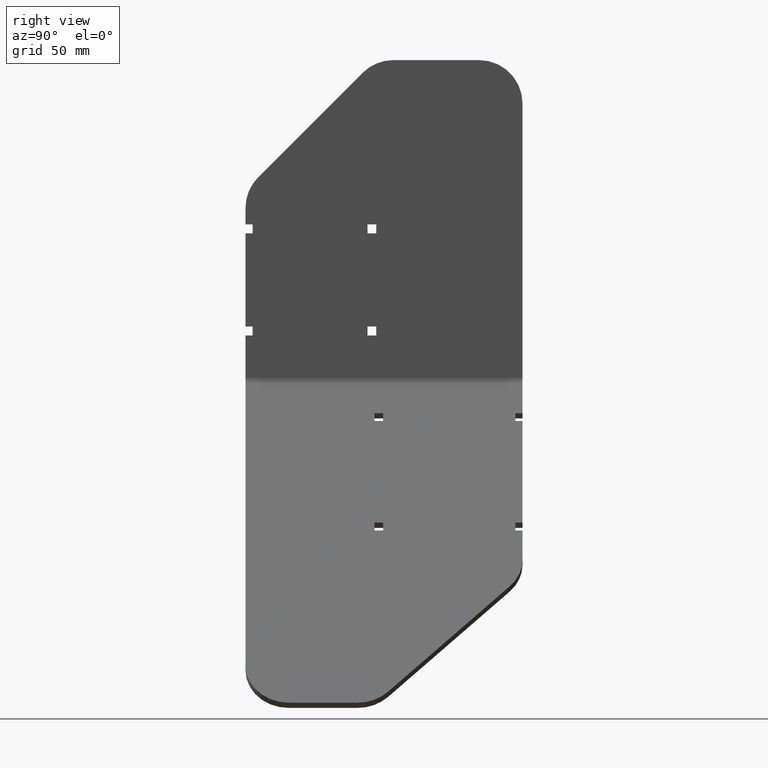
[diagram: clean part render]
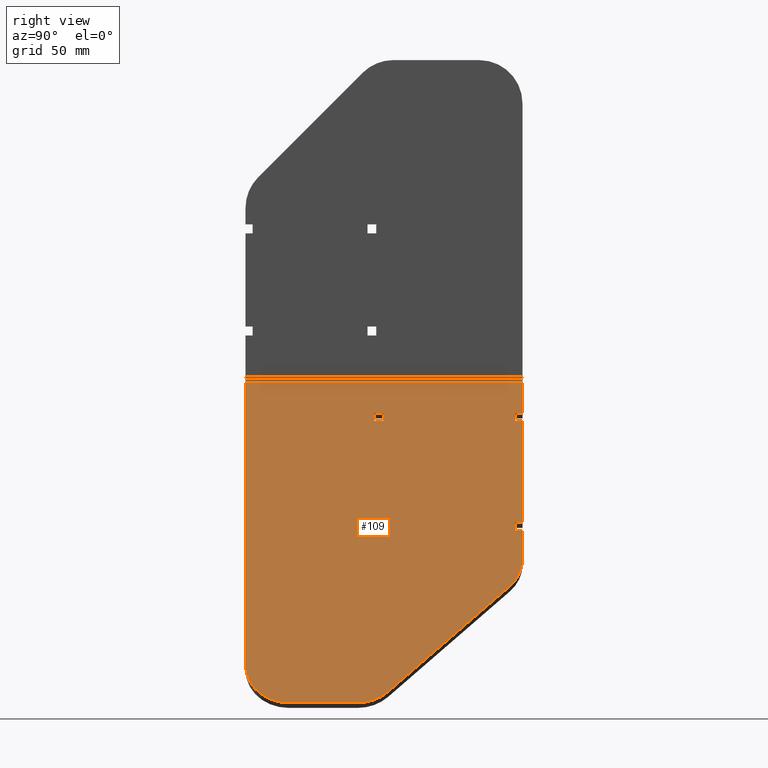
[diagram: same view with one face highlighted and labeled with its STEP entity id]
A machine part, right view. The second image highlights one B-rep face of the part: STEP entity #109.
In plain terms, the highlighted planar face has unit normal (0.866, -0, 0.5).
Its self-contained STEP definition (entity closure, byte-faithful):
#4 = DIRECTION ( 'NONE',  ( 0.3535533905932753962, -0.7071067811865435759, -0.6123724356957981341 ) ) ;
#16 = CARTESIAN_POINT ( 'NONE',  ( -829.5299461620750208, -1174.805262667903662, -930.2627944162877611 ) ) ;
#19 = EDGE_CURVE ( 'NONE', #1085, #1473, #1100, .T. ) ;
#20 = VERTEX_POINT ( 'NONE', #1659 ) ;
#32 = CARTESIAN_POINT ( 'NONE',  ( -829.5299461620750208, -1174.805262667903662, -930.2627944162877611 ) ) ;
#34 = CARTESIAN_POINT ( 'NONE',  ( -986.4499999999997044, -1174.805262667903435, -658.4692884425583088 ) ) ;
#35 = VERTEX_POINT ( 'NONE', #207 ) ;
#47 = CARTESIAN_POINT ( 'NONE',  ( -829.5299461620750208, -1089.305262667903889, -930.2627944162877611 ) ) ;
#65 = ORIENTED_EDGE ( 'NONE', *, *, #1227, .T. ) ;
#66 = AXIS2_PLACEMENT_3D ( 'NONE', #1560, #1555, #1003 ) ;
#67 = LINE ( 'NONE', #255, #1081 ) ;
#71 = LINE ( 'NONE', #639, #1028 ) ;
#96 = LINE ( 'NONE', #1742, #1311 ) ;
#97 = EDGE_CURVE ( 'NONE', #665, #1506, #1298, .T. ) ;
#100 = CARTESIAN_POINT ( 'NONE',  ( -829.5299461620750208, -1249.305262667903662, -930.2627944162877611 ) ) ;
#103 = EDGE_CURVE ( 'NONE', #960, #702, #1434, .T. ) ;
#109 = ADVANCED_FACE ( 'NONE', ( #307, #617, #606 ), #332, .T. ) ;
#112 = CARTESIAN_POINT ( 'NONE',  ( -952.5500000000000682, -1089.305262667903889, -717.1858108191424890 ) ) ;
#120 = ORIENTED_EDGE ( 'NONE', *, *, #428, .T. ) ;
#122 = VERTEX_POINT ( 'NONE', #322 ) ;
#139 = ORIENTED_EDGE ( 'NONE', *, *, #1474, .T. ) ;
#144 = CARTESIAN_POINT ( 'NONE',  ( -904.9999999999996589, -1249.305262667903662, -799.5448267190434990 ) ) ;
#145 = CARTESIAN_POINT ( 'NONE',  ( -829.5299461620750208, -1089.305262667903889, -930.2627944162877611 ) ) ;
#148 = DIRECTION ( 'NONE',  ( 0.4999999999999995559, 0.000000000000000000, -0.8660254037844389297 ) ) ;
#157 = EDGE_CURVE ( 'NONE', #1506, #160, #67, .T. ) ;
#160 = VERTEX_POINT ( 'NONE', #645 ) ;
#164 = DIRECTION ( 'NONE',  ( -0.4999999999999995559, 0.000000000000000000, 0.8660254037844389297 ) ) ;
#171 = DIRECTION ( 'NONE',  ( 0.4999999999999995559, 0.000000000000000000, -0.8660254037844389297 ) ) ;
#173 = LINE ( 'NONE', #1140, #739 ) ;
#174 = CARTESIAN_POINT ( 'NONE',  ( -896.1611652351680277, -1166.982932197567607, -814.8541376114382047 ) ) ;
#180 = DIRECTION ( 'NONE',  ( -0.4999999999999995559, 0.000000000000000000, 0.8660254037844389297 ) ) ;
#183 = ORIENTED_EDGE ( 'NONE', *, *, #1567, .F. ) ;
#203 = CARTESIAN_POINT ( 'NONE',  ( -952.5500000000000682, -1093.405262667904026, -717.1858108191424890 ) ) ;
#207 = CARTESIAN_POINT ( 'NONE',  ( -949.9500000000000455, -1093.405262667904026, -721.6891429188216307 ) ) ;
#223 = VECTOR ( 'NONE', #1375, 1000.000000000000000 ) ;
#224 = VECTOR ( 'NONE', #555, 1000.000000000000000 ) ;
#226 = DIRECTION ( 'NONE',  ( 0.4999999999999987788, 0.000000000000000000, -0.8660254037844393737 ) ) ;
#255 = CARTESIAN_POINT ( 'NONE',  ( -949.9500000000000455, -574.8301822523413875, -721.6891429188217444 ) ) ;
#279 = ORIENTED_EDGE ( 'NONE', *, *, #295, .T. ) ;
#295 = EDGE_CURVE ( 'NONE', #929, #1244, #96, .T. ) ;
#307 = FACE_OUTER_BOUND ( 'NONE', #336, .T. ) ;
#309 = LINE ( 'NONE', #580, #1769 ) ;
#322 = CARTESIAN_POINT ( 'NONE',  ( -952.5500000000000682, -1174.805262667903662, -717.1858108191426027 ) ) ;
#331 = AXIS2_PLACEMENT_3D ( 'NONE', #1235, #405, #688 ) ;
#332 = PLANE ( 'NONE',  #66 ) ;
#336 = EDGE_LOOP ( 'NONE', ( #487, #375, #896, #1224, #806, #139, #65, #1542, #1091, #411, #902, #1029, #183, #1496, #749, #1121 ) ) ;
#347 = CARTESIAN_POINT ( 'NONE',  ( -986.4499999999999318, -1089.305262667903889, -658.4692884425578541 ) ) ;
#352 = EDGE_CURVE ( 'NONE', #1466, #702, #1760, .T. ) ;
#375 = ORIENTED_EDGE ( 'NONE', *, *, #1757, .F. ) ;
#377 = EDGE_CURVE ( 'NONE', #490, #705, #1770, .T. ) ;
#398 = ORIENTED_EDGE ( 'NONE', *, *, #1105, .T. ) ;
#405 = DIRECTION ( 'NONE',  ( 0.8660254037844389297, -0.000000000000000000, 0.4999999999999995559 ) ) ;
#406 = VERTEX_POINT ( 'NONE', #1098 ) ;
#411 = ORIENTED_EDGE ( 'NONE', *, *, #377, .F. ) ;
#428 = EDGE_CURVE ( 'NONE', #1046, #922, #1647, .T. ) ;
#435 = ORIENTED_EDGE ( 'NONE', *, *, #1651, .T. ) ;
#451 = VERTEX_POINT ( 'NONE', #1507 ) ;
#452 = VECTOR ( 'NONE', #544, 1000.000000000000000 ) ;
#472 = CARTESIAN_POINT ( 'NONE',  ( -989.0499999999997272, -1174.805262667903662, -653.9659563428791671 ) ) ;
#479 = EDGE_CURVE ( 'NONE', #490, #451, #1512, .T. ) ;
#480 = VECTOR ( 'NONE', #180, 1000.000000000000000 ) ;
#484 = LINE ( 'NONE', #100, #712 ) ;
#487 = ORIENTED_EDGE ( 'NONE', *, *, #352, .F. ) ;
#490 = VERTEX_POINT ( 'NONE', #715 ) ;
#505 = CARTESIAN_POINT ( 'NONE',  ( -986.4499999999997044, -1169.805262667903889, -658.4692884425583088 ) ) ;
#518 = LINE ( 'NONE', #1610, #853 ) ;
#544 = DIRECTION ( 'NONE',  ( 0.4999999999999995559, 0.000000000000000000, -0.8660254037844389297 ) ) ;
#551 = DIRECTION ( 'NONE',  ( 0.000000000000000000, -1.000000000000000000, 0.000000000000000000 ) ) ;
#555 = DIRECTION ( 'NONE',  ( 0.000000000000000000, -1.000000000000000000, 0.000000000000000000 ) ) ;
#568 = DIRECTION ( 'NONE',  ( -0.4999999999999995559, 0.000000000000000000, 0.8660254037844389297 ) ) ;
#580 = CARTESIAN_POINT ( 'NONE',  ( -999.1961524227064046, -1249.305262667903662, -636.3923048454130367 ) ) ;
#585 = DIRECTION ( 'NONE',  ( -0.4999999999999995559, 0.000000000000000000, 0.8660254037844389297 ) ) ;
#587 = LINE ( 'NONE', #32, #480 ) ;
#596 = VECTOR ( 'NONE', #858, 1000.000000000000000 ) ;
#604 = LINE ( 'NONE', #1440, #1734 ) ;
#606 = FACE_BOUND ( 'NONE', #912, .T. ) ;
#617 = FACE_BOUND ( 'NONE', #1503, .T. ) ;
#624 = VECTOR ( 'NONE', #4, 1000.000000000000000 ) ;
#636 = DIRECTION ( 'NONE',  ( 0.000000000000000000, -1.000000000000000000, 0.000000000000000000 ) ) ;
#637 = EDGE_CURVE ( 'NONE', #1489, #406, #518, .T. ) ;
#639 = CARTESIAN_POINT ( 'NONE',  ( -952.5500000000000682, -574.8301822523413875, -717.1858108191426027 ) ) ;
#645 = CARTESIAN_POINT ( 'NONE',  ( -949.9500000000000455, -1174.805262667903435, -721.6891429188217444 ) ) ;
#652 = VECTOR ( 'NONE', #585, 1000.000000000000000 ) ;
#665 = VERTEX_POINT ( 'NONE', #1700 ) ;
#684 = DIRECTION ( 'NONE',  ( 0.000000000000000000, 1.000000000000000000, 0.000000000000000000 ) ) ;
#688 = DIRECTION ( 'NONE',  ( 0.4999999999999987788, 0.000000000000000000, -0.8660254037844393737 ) ) ;
#692 = CARTESIAN_POINT ( 'NONE',  ( -949.9500000000000455, -574.8301822523413875, -721.6891429188216307 ) ) ;
#702 = VERTEX_POINT ( 'NONE', #347 ) ;
#705 = VERTEX_POINT ( 'NONE', #174 ) ;
#708 = ORIENTED_EDGE ( 'NONE', *, *, #97, .T. ) ;
#712 = VECTOR ( 'NONE', #774, 999.9999999999998863 ) ;
#715 = CARTESIAN_POINT ( 'NONE',  ( -931.3388347648321997, -1096.627593138239945, -753.9246266941921704 ) ) ;
#733 = VECTOR ( 'NONE', #551, 1000.000000000000000 ) ;
#739 = VECTOR ( 'NONE', #1012, 1000.000000000000000 ) ;
#748 = CARTESIAN_POINT ( 'NONE',  ( -940.1776695296639446, -1114.305262667903662, -738.6153158017973510 ) ) ;
#749 = ORIENTED_EDGE ( 'NONE', *, *, #1746, .F. ) ;
#764 = DIRECTION ( 'NONE',  ( 0.8660254037844389297, -0.000000000000000000, 0.4999999999999995559 ) ) ;
#774 = DIRECTION ( 'NONE',  ( 0.4999999999999995004, -0.000000000000000000, -0.8660254037844390407 ) ) ;
#796 = LINE ( 'NONE', #1252, #1402 ) ;
#806 = ORIENTED_EDGE ( 'NONE', *, *, #1360, .T. ) ;
#812 = VERTEX_POINT ( 'NONE', #203 ) ;
#824 = CIRCLE ( 'NONE', #331, 24.99999999999997158 ) ;
#825 = CARTESIAN_POINT ( 'NONE',  ( -949.9500000000000455, -1169.805262667903889, -721.6891429188217444 ) ) ;
#853 = VECTOR ( 'NONE', #1469, 1000.000000000000000 ) ;
#858 = DIRECTION ( 'NONE',  ( -0.4999999999999995559, 0.000000000000000000, 0.8660254037844389297 ) ) ;
#862 = EDGE_CURVE ( 'NONE', #451, #1162, #891, .T. ) ;
#869 = DIRECTION ( 'NONE',  ( 0.000000000000000000, -1.000000000000000000, 0.000000000000000000 ) ) ;
#891 = LINE ( 'NONE', #1691, #596 ) ;
#896 = ORIENTED_EDGE ( 'NONE', *, *, #1251, .F. ) ;
#902 = ORIENTED_EDGE ( 'NONE', *, *, #479, .T. ) ;
#910 = AXIS2_PLACEMENT_3D ( 'NONE', #748, #1027, #226 ) ;
#912 = EDGE_LOOP ( 'NONE', ( #1020, #708, #1215, #1743 ) ) ;
#922 = VERTEX_POINT ( 'NONE', #34 ) ;
#926 = LINE ( 'NONE', #1475, #452 ) ;
#929 = VERTEX_POINT ( 'NONE', #472 ) ;
#932 = EDGE_CURVE ( 'NONE', #812, #35, #604, .T. ) ;
#947 = VECTOR ( 'NONE', #164, 1000.000000000000000 ) ;
#960 = VERTEX_POINT ( 'NONE', #112 ) ;
#963 = LINE ( 'NONE', #1103, #224 ) ;
#994 = EDGE_CURVE ( 'NONE', #1489, #705, #1488, .T. ) ;
#1003 = DIRECTION ( 'NONE',  ( 0.4999999999999995559, 0.000000000000000000, -0.8660254037844389297 ) ) ;
#1012 = DIRECTION ( 'NONE',  ( 0.000000000000000000, -1.000000000000000000, 0.000000000000000000 ) ) ;
#1020 = ORIENTED_EDGE ( 'NONE', *, *, #1433, .T. ) ;
#1027 = DIRECTION ( 'NONE',  ( 0.8660254037844389297, -0.000000000000000000, 0.4999999999999995559 ) ) ;
#1028 = VECTOR ( 'NONE', #1180, 1000.000000000000000 ) ;
#1029 = ORIENTED_EDGE ( 'NONE', *, *, #862, .T. ) ;
#1046 = VERTEX_POINT ( 'NONE', #505 ) ;
#1048 = CARTESIAN_POINT ( 'NONE',  ( -999.1961524227064046, -1089.305262667903889, -636.3923048454130367 ) ) ;
#1050 = VECTOR ( 'NONE', #568, 1000.000000000000000 ) ;
#1081 = VECTOR ( 'NONE', #636, 1000.000000000000000 ) ;
#1085 = VERTEX_POINT ( 'NONE', #1198 ) ;
#1091 = ORIENTED_EDGE ( 'NONE', *, *, #994, .T. ) ;
#1098 = CARTESIAN_POINT ( 'NONE',  ( -892.4999999999997726, -1224.305262667903889, -821.1954618136544468 ) ) ;
#1100 = LINE ( 'NONE', #145, #1050 ) ;
#1103 = CARTESIAN_POINT ( 'NONE',  ( -952.5500000000000682, -574.8301822523413875, -717.1858108191424890 ) ) ;
#1105 = EDGE_CURVE ( 'NONE', #1244, #1046, #926, .T. ) ;
#1109 = LINE ( 'NONE', #692, #223 ) ;
#1119 = LINE ( 'NONE', #16, #947 ) ;
#1121 = ORIENTED_EDGE ( 'NONE', *, *, #103, .T. ) ;
#1140 = CARTESIAN_POINT ( 'NONE',  ( -989.0499999999999545, -574.8301822523413875, -653.9659563428787123 ) ) ;
#1162 = VERTEX_POINT ( 'NONE', #1511 ) ;
#1180 = DIRECTION ( 'NONE',  ( 0.000000000000000000, 1.000000000000000000, 0.000000000000000000 ) ) ;
#1198 = CARTESIAN_POINT ( 'NONE',  ( -989.0499999999999545, -1089.305262667903889, -653.9659563428787123 ) ) ;
#1211 = DIRECTION ( 'NONE',  ( 0.4999999999999987788, 0.000000000000000000, -0.8660254037844393737 ) ) ;
#1215 = ORIENTED_EDGE ( 'NONE', *, *, #157, .T. ) ;
#1224 = ORIENTED_EDGE ( 'NONE', *, *, #19, .T. ) ;
#1225 = CARTESIAN_POINT ( 'NONE',  ( -989.0499999999997272, -1169.805262667903889, -653.9659563428791671 ) ) ;
#1227 = EDGE_CURVE ( 'NONE', #1524, #406, #824, .T. ) ;
#1230 = CARTESIAN_POINT ( 'NONE',  ( -986.4499999999997044, -574.8301822523413875, -658.4692884425583088 ) ) ;
#1235 = CARTESIAN_POINT ( 'NONE',  ( -904.9999999999996589, -1224.305262667903889, -799.5448267190434990 ) ) ;
#1244 = VERTEX_POINT ( 'NONE', #1225 ) ;
#1251 = EDGE_CURVE ( 'NONE', #1085, #20, #173, .T. ) ;
#1252 = CARTESIAN_POINT ( 'NONE',  ( -829.5299461620750208, -1093.405262667904026, -930.2627944162877611 ) ) ;
#1298 = LINE ( 'NONE', #1696, #1420 ) ;
#1311 = VECTOR ( 'NONE', #1614, 1000.000000000000000 ) ;
#1338 = CARTESIAN_POINT ( 'NONE',  ( -999.1961524227064046, -1249.305262667903662, -636.3923048454130367 ) ) ;
#1350 = CARTESIAN_POINT ( 'NONE',  ( -904.9999999999996589, -1184.660601727231324, -799.5448267190434990 ) ) ;
#1360 = EDGE_CURVE ( 'NONE', #1473, #1443, #309, .T. ) ;
#1363 = EDGE_CURVE ( 'NONE', #160, #122, #587, .T. ) ;
#1368 = VECTOR ( 'NONE', #684, 1000.000000000000000 ) ;
#1375 = DIRECTION ( 'NONE',  ( 0.000000000000000000, 1.000000000000000000, 0.000000000000000000 ) ) ;
#1402 = VECTOR ( 'NONE', #148, 1000.000000000000000 ) ;
#1420 = VECTOR ( 'NONE', #171, 1000.000000000000000 ) ;
#1433 = EDGE_CURVE ( 'NONE', #122, #665, #71, .T. ) ;
#1434 = LINE ( 'NONE', #47, #652 ) ;
#1440 = CARTESIAN_POINT ( 'NONE',  ( -829.5299461620750208, -1093.405262667904026, -930.2627944162877611 ) ) ;
#1443 = VERTEX_POINT ( 'NONE', #1338 ) ;
#1459 = AXIS2_PLACEMENT_3D ( 'NONE', #1350, #764, #1211 ) ;
#1466 = VERTEX_POINT ( 'NONE', #1744 ) ;
#1469 = DIRECTION ( 'NONE',  ( 0.000000000000000000, -1.000000000000000000, 0.000000000000000000 ) ) ;
#1473 = VERTEX_POINT ( 'NONE', #1048 ) ;
#1474 = EDGE_CURVE ( 'NONE', #1443, #1524, #484, .T. ) ;
#1475 = CARTESIAN_POINT ( 'NONE',  ( -829.5299461620750208, -1169.805262667903889, -930.2627944162877611 ) ) ;
#1488 = CIRCLE ( 'NONE', #1459, 24.99999999999997158 ) ;
#1489 = VERTEX_POINT ( 'NONE', #1598 ) ;
#1496 = ORIENTED_EDGE ( 'NONE', *, *, #932, .F. ) ;
#1500 = CARTESIAN_POINT ( 'NONE',  ( -1010.883743184927539, -937.5377762980507441, -616.1488038271734240 ) ) ;
#1503 = EDGE_LOOP ( 'NONE', ( #279, #398, #120, #435 ) ) ;
#1506 = VERTEX_POINT ( 'NONE', #825 ) ;
#1507 = CARTESIAN_POINT ( 'NONE',  ( -940.1776695296638309, -1089.305262667903889, -738.6153158017973510 ) ) ;
#1511 = CARTESIAN_POINT ( 'NONE',  ( -949.9500000000000455, -1089.305262667903889, -721.6891429188216307 ) ) ;
#1512 = CIRCLE ( 'NONE', #910, 24.99999999999997158 ) ;
#1524 = VERTEX_POINT ( 'NONE', #144 ) ;
#1529 = CARTESIAN_POINT ( 'NONE',  ( -986.4499999999999318, -574.8301822523413875, -658.4692884425578541 ) ) ;
#1542 = ORIENTED_EDGE ( 'NONE', *, *, #637, .F. ) ;
#1555 = DIRECTION ( 'NONE',  ( 0.8660254037844389297, -0.000000000000000000, 0.4999999999999995559 ) ) ;
#1560 = CARTESIAN_POINT ( 'NONE',  ( -829.5299461620750208, -574.8301822523413875, -930.2627944162877611 ) ) ;
#1563 = DIRECTION ( 'NONE',  ( 0.4999999999999995559, 0.000000000000000000, -0.8660254037844389297 ) ) ;
#1567 = EDGE_CURVE ( 'NONE', #35, #1162, #1109, .T. ) ;
#1598 = CARTESIAN_POINT ( 'NONE',  ( -892.4999999999997726, -1184.660601727231324, -821.1954618136544468 ) ) ;
#1610 = CARTESIAN_POINT ( 'NONE',  ( -892.4999999999997726, -574.8301822523413875, -821.1954618136544468 ) ) ;
#1614 = DIRECTION ( 'NONE',  ( 0.000000000000000000, 1.000000000000000000, 0.000000000000000000 ) ) ;
#1647 = LINE ( 'NONE', #1230, #733 ) ;
#1651 = EDGE_CURVE ( 'NONE', #922, #929, #1119, .T. ) ;
#1659 = CARTESIAN_POINT ( 'NONE',  ( -989.0499999999999545, -1093.405262667904026, -653.9659563428787123 ) ) ;
#1691 = CARTESIAN_POINT ( 'NONE',  ( -829.5299461620750208, -1089.305262667903889, -930.2627944162877611 ) ) ;
#1696 = CARTESIAN_POINT ( 'NONE',  ( -829.5299461620750208, -1169.805262667903889, -930.2627944162877611 ) ) ;
#1700 = CARTESIAN_POINT ( 'NONE',  ( -952.5500000000000682, -1169.805262667903889, -717.1858108191426027 ) ) ;
#1734 = VECTOR ( 'NONE', #1563, 1000.000000000000000 ) ;
#1742 = CARTESIAN_POINT ( 'NONE',  ( -989.0499999999997272, -574.8301822523413875, -653.9659563428791671 ) ) ;
#1743 = ORIENTED_EDGE ( 'NONE', *, *, #1363, .T. ) ;
#1744 = CARTESIAN_POINT ( 'NONE',  ( -986.4500000000000455, -1093.405262667904026, -658.4692884425578541 ) ) ;
#1746 = EDGE_CURVE ( 'NONE', #960, #812, #963, .T. ) ;
#1757 = EDGE_CURVE ( 'NONE', #20, #1466, #796, .T. ) ;
#1760 = LINE ( 'NONE', #1529, #1368 ) ;
#1769 = VECTOR ( 'NONE', #869, 1000.000000000000000 ) ;
#1770 = LINE ( 'NONE', #1500, #624 ) ;